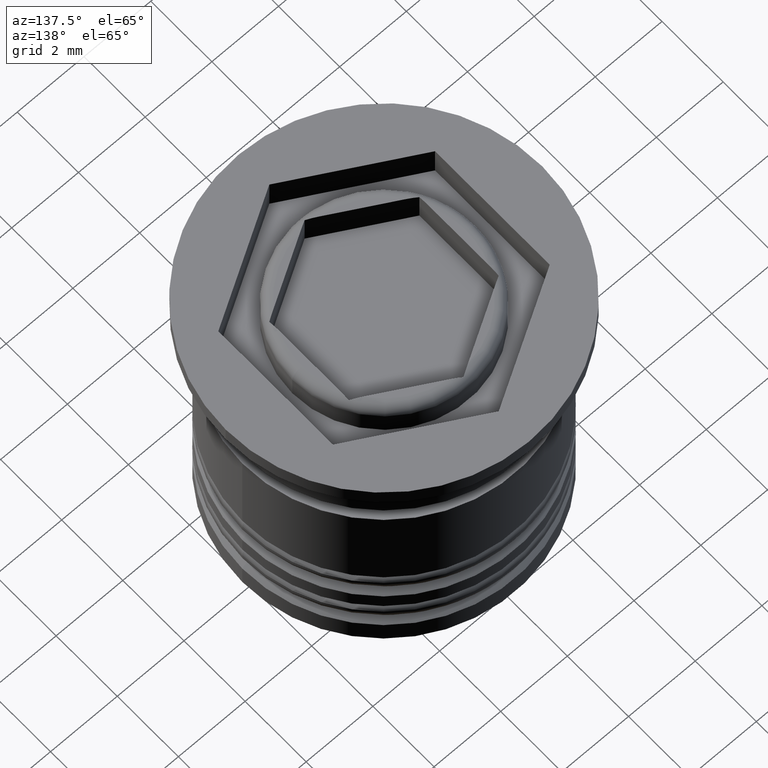
[diagram: clean part render]
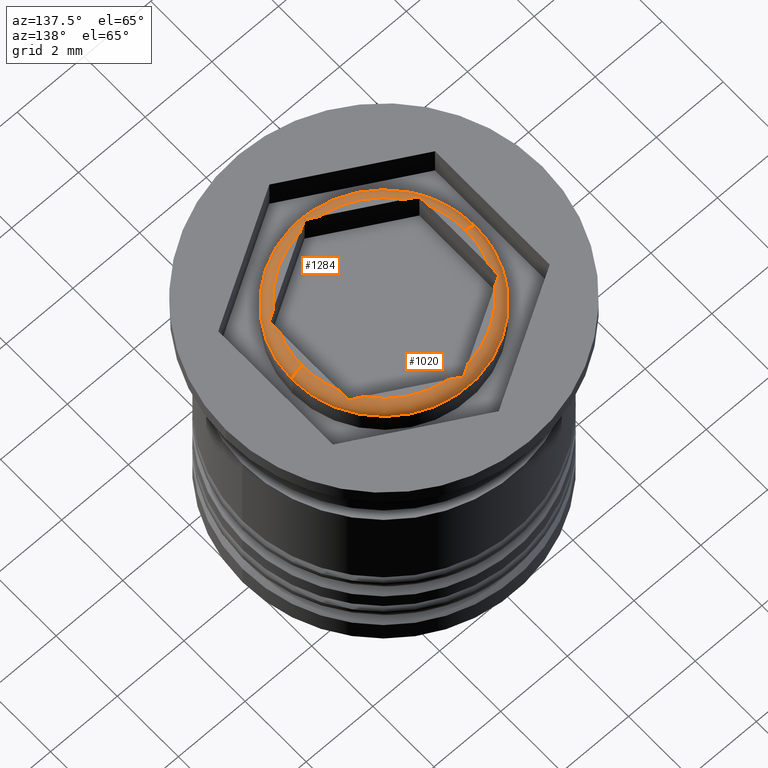
[diagram: same view with one multi-face feature highlighted, each face labeled with its STEP entity id]
A machine part, auxiliary view. The highlighted faces form ONE feature: a constant-radius fillet chain: 2 tangent blend faces with common blend radius 0.3 mm. The faces share edges in the B-rep.
Their STEP definitions:
[1] entity #1020 (Torus):
#14 = ORIENTED_EDGE ( 'NONE', *, *, #1392, .F. ) ;
#33 = CARTESIAN_POINT ( 'NONE',  ( -2.249999999999999556, 1.299038105676657340, -0.03909113539159181361 ) ) ;
#83 = EDGE_CURVE ( 'NONE', #1357, #1843, #1009, .T. ) ;
#94 = AXIS2_PLACEMENT_3D ( 'NONE', #482, #1120, #1261 ) ;
#108 = EDGE_CURVE ( 'NONE', #1653, #1841, #541, .T. ) ;
#109 = VERTEX_POINT ( 'NONE', #723 ) ;
#164 = CARTESIAN_POINT ( 'NONE',  ( 2.249999999999999556, 0.9695359714832667564, 0.000000000000000000 ) ) ;
#182 = DIRECTION ( 'NONE',  ( 0.000000000000000000, 0.000000000000000000, -1.000000000000000000 ) ) ;
#198 = ORIENTED_EDGE ( 'NONE', *, *, #558, .F. ) ;
#201 = EDGE_CURVE ( 'NONE', #1841, #109, #295, .T. ) ;
#206 = VERTEX_POINT ( 'NONE', #1345 ) ;
#218 = CIRCLE ( 'NONE', #1050, 2.449999999999999734 ) ;
#221 = CIRCLE ( 'NONE', #390, 0.2999999999999999334 ) ;
#231 = VERTEX_POINT ( 'NONE', #1546 ) ;
#237 = DIRECTION ( 'NONE',  ( -0.000000000000000000, -0.000000000000000000, 1.000000000000000000 ) ) ;
#253 = CARTESIAN_POINT ( 'NONE',  ( 1.964642781187333487, 1.463789172773352965, 0.000000000000000000 ) ) ;
#295 = B_SPLINE_CURVE_WITH_KNOTS ( 'NONE', 3,
 ( #1333, #928, #1042, #403 ),
 .UNSPECIFIED., .F., .F.,
 ( 4, 4 ),
 ( 0.000000000000000000, 0.0003318128588590306210 ),
 .UNSPECIFIED. ) ;
#312 = CARTESIAN_POINT ( 'NONE',  ( 2.449999999999999734, 0.000000000000000000, 0.000000000000000000 ) ) ;
#350 = B_SPLINE_CURVE_WITH_KNOTS ( 'NONE', 3,
 ( #33, #1800, #1426, #1751 ),
 .UNSPECIFIED., .F., .F.,
 ( 4, 4 ),
 ( 1.355252715606880392E-20, 0.0003318128588590305125 ),
 .UNSPECIFIED. ) ;
#367 = DIRECTION ( 'NONE',  ( 0.000000000000000000, -1.000000000000000000, 0.000000000000000000 ) ) ;
#377 = CARTESIAN_POINT ( 'NONE',  ( -2.449999999999999734, 3.000384657911015370E-16, -0.2999999999999999334 ) ) ;
#382 = CARTESIAN_POINT ( 'NONE',  ( 0.000000000000000000, 0.000000000000000000, 0.000000000000000000 ) ) ;
#390 = AXIS2_PLACEMENT_3D ( 'NONE', #656, #367, #1163 ) ;
#403 = CARTESIAN_POINT ( 'NONE',  ( -2.249999999999999556, 1.299038105676657340, -0.03909113539159181361 ) ) ;
#437 = EDGE_CURVE ( 'NONE', #206, #1775, #218, .T. ) ;
#482 = CARTESIAN_POINT ( 'NONE',  ( 0.000000000000000000, 0.000000000000000000, -0.2999999999999999334 ) ) ;
#499 = CARTESIAN_POINT ( 'NONE',  ( 0.2853572188126658471, 2.433325144256619943, 0.000000000000000000 ) ) ;
#502 = DIRECTION ( 'NONE',  ( -0.000000000000000000, -0.000000000000000000, 1.000000000000000000 ) ) ;
#505 = CARTESIAN_POINT ( 'NONE',  ( 0.000000000000000000, 0.000000000000000000, 0.000000000000000000 ) ) ;
#521 = DIRECTION ( 'NONE',  ( 1.000000000000000000, 0.000000000000000000, 0.000000000000000000 ) ) ;
#528 = ORIENTED_EDGE ( 'NONE', *, *, #1116, .F. ) ;
#541 = CIRCLE ( 'NONE', #1630, 2.449999999999999734 ) ;
#558 = EDGE_CURVE ( 'NONE', #1843, #1407, #924, .T. ) ;
#581 = CIRCLE ( 'NONE', #1053, 0.2999999999999999334 ) ;
#642 = CARTESIAN_POINT ( 'NONE',  ( 0.09331629800900277660, 2.544200021578038484, -0.008514243816631314118 ) ) ;
#653 = EDGE_CURVE ( 'NONE', #231, #1775, #581, .T. ) ;
#656 = CARTESIAN_POINT ( 'NONE',  ( 2.449999999999999734, 0.000000000000000000, -0.2999999999999999334 ) ) ;
#661 = ORIENTED_EDGE ( 'NONE', *, *, #793, .F. ) ;
#664 = EDGE_CURVE ( 'NONE', #1025, #1357, #221, .T. ) ;
#721 = B_SPLINE_CURVE_WITH_KNOTS ( 'NONE', 3,
 ( #943, #786, #1111, #1736 ),
 .UNSPECIFIED., .F., .F.,
 ( 4, 4 ),
 ( 7.807858345385552951E-20, 0.0003318128588590312173 ),
 .UNSPECIFIED. ) ;
#723 = CARTESIAN_POINT ( 'NONE',  ( -2.249999999999999556, 1.299038105676657340, -0.03909113539159181361 ) ) ;
#741 = CARTESIAN_POINT ( 'NONE',  ( 2.156683701990996571, 1.352914295451935311, -0.008514243816639953041 ) ) ;
#752 = CARTESIAN_POINT ( 'NONE',  ( 2.061100629496125602, 1.408099208086820653, 4.580113279480079541E-18 ) ) ;
#786 = CARTESIAN_POINT ( 'NONE',  ( -0.09331629800900279048, 2.544200021578038484, -0.008514243816639925286 ) ) ;
#793 = EDGE_CURVE ( 'NONE', #1407, #880, #1317, .T. ) ;
#795 = CARTESIAN_POINT ( 'NONE',  ( 2.249999999999999556, 1.299038105676658228, -0.03909113539159181361 ) ) ;
#831 = CARTESIAN_POINT ( 'NONE',  ( -1.964642781187333931, 1.463789172773352742, 0.000000000000000000 ) ) ;
#836 = DIRECTION ( 'NONE',  ( 1.000000000000000000, 0.000000000000000000, 0.000000000000000000 ) ) ;
#838 = CARTESIAN_POINT ( 'NONE',  ( 0.000000000000000000, 0.000000000000000000, 0.000000000000000000 ) ) ;
#868 = ORIENTED_EDGE ( 'NONE', *, *, #664, .F. ) ;
#880 = VERTEX_POINT ( 'NONE', #885 ) ;
#885 = CARTESIAN_POINT ( 'NONE',  ( 1.964642781187333487, 1.463789172773352965, 0.000000000000000000 ) ) ;
#924 = B_SPLINE_CURVE_WITH_KNOTS ( 'NONE', 3,
 ( #164, #1886, #1278, #1580 ),
 .UNSPECIFIED., .F., .F.,
 ( 4, 4 ),
 ( 1.091596556667333610E-19, 0.0003318128588590312715 ),
 .UNSPECIFIED. ) ;
#928 = CARTESIAN_POINT ( 'NONE',  ( -2.061100629496125158, 1.408099208086819987, 0.000000000000000000 ) ) ;
#943 = CARTESIAN_POINT ( 'NONE',  ( 0.000000000000000000, 2.598076211353315568, -0.03909113539159181361 ) ) ;
#953 = DIRECTION ( 'NONE',  ( -0.000000000000000000, -0.000000000000000000, 1.000000000000000000 ) ) ;
#967 = DIRECTION ( 'NONE',  ( 1.000000000000000000, 0.000000000000000000, 0.000000000000000000 ) ) ;
#972 = CARTESIAN_POINT ( 'NONE',  ( 0.000000000000000000, 2.598076211353315568, -0.03909113539159181361 ) ) ;
#1009 = CIRCLE ( 'NONE', #1589, 2.449999999999999734 ) ;
#1017 = ORIENTED_EDGE ( 'NONE', *, *, #1069, .F. ) ;
#1020 = ADVANCED_FACE ( 'NONE', ( #2017 ), #1840, .T. ) ;
#1025 = VERTEX_POINT ( 'NONE', #1579 ) ;
#1042 = CARTESIAN_POINT ( 'NONE',  ( -2.156683701990996127, 1.352914295451934867, -0.008514243816631204831 ) ) ;
#1050 = AXIS2_PLACEMENT_3D ( 'NONE', #382, #1159, #521 ) ;
#1053 = AXIS2_PLACEMENT_3D ( 'NONE', #377, #1154, #1939 ) ;
#1059 = EDGE_CURVE ( 'NONE', #1613, #1322, #1952, .T. ) ;
#1069 = EDGE_CURVE ( 'NONE', #231, #1025, #1641, .T. ) ;
#1111 = CARTESIAN_POINT ( 'NONE',  ( -0.1888993705038740090, 2.489015108943152921, 5.673802033703191998E-17 ) ) ;
#1116 = EDGE_CURVE ( 'NONE', #109, #206, #350, .T. ) ;
#1120 = DIRECTION ( 'NONE',  ( -0.000000000000000000, -0.000000000000000000, 1.000000000000000000 ) ) ;
#1127 = CARTESIAN_POINT ( 'NONE',  ( 0.000000000000000000, 0.000000000000000000, -0.2999999999999999334 ) ) ;
#1137 = DIRECTION ( 'NONE',  ( 1.000000000000000000, 0.000000000000000000, 0.000000000000000000 ) ) ;
#1141 = DIRECTION ( 'NONE',  ( 1.000000000000000000, 0.000000000000000000, 0.000000000000000000 ) ) ;
#1154 = DIRECTION ( 'NONE',  ( 1.224646799147353207E-16, 1.000000000000000000, 0.000000000000000000 ) ) ;
#1159 = DIRECTION ( 'NONE',  ( -0.000000000000000000, -0.000000000000000000, 1.000000000000000000 ) ) ;
#1160 = ORIENTED_EDGE ( 'NONE', *, *, #437, .F. ) ;
#1163 = DIRECTION ( 'NONE',  ( 0.000000000000000000, 0.000000000000000000, -1.000000000000000000 ) ) ;
#1168 = ORIENTED_EDGE ( 'NONE', *, *, #1059, .F. ) ;
#1200 = CARTESIAN_POINT ( 'NONE',  ( 0.2853572188126658471, 2.433325144256619943, 0.000000000000000000 ) ) ;
#1261 = DIRECTION ( 'NONE',  ( 1.000000000000000000, 0.000000000000000000, 0.000000000000000000 ) ) ;
#1278 = CARTESIAN_POINT ( 'NONE',  ( 2.249999999999999556, 1.191285726126103395, -0.008514243816631157993 ) ) ;
#1296 = CARTESIAN_POINT ( 'NONE',  ( 0.1888993705038739812, 2.489015108943152477, 6.307560615009485483E-17 ) ) ;
#1307 = AXIS2_PLACEMENT_3D ( 'NONE', #1127, #182, #836 ) ;
#1317 = B_SPLINE_CURVE_WITH_KNOTS ( 'NONE', 3,
 ( #1353, #741, #752, #253 ),
 .UNSPECIFIED., .F., .F.,
 ( 4, 4 ),
 ( 1.355252715606880543E-20, 0.0003318128588590308378 ),
 .UNSPECIFIED. ) ;
#1322 = VERTEX_POINT ( 'NONE', #972 ) ;
#1333 = CARTESIAN_POINT ( 'NONE',  ( -1.964642781187333931, 1.463789172773352742, 0.000000000000000000 ) ) ;
#1345 = CARTESIAN_POINT ( 'NONE',  ( -2.249999999999999556, 0.9695359714832668674, 0.000000000000000000 ) ) ;
#1353 = CARTESIAN_POINT ( 'NONE',  ( 2.249999999999999556, 1.299038105676658228, -0.03909113539159181361 ) ) ;
#1357 = VERTEX_POINT ( 'NONE', #312 ) ;
#1360 = EDGE_CURVE ( 'NONE', #880, #1613, #2029, .T. ) ;
#1392 = EDGE_CURVE ( 'NONE', #1322, #1653, #721, .T. ) ;
#1401 = AXIS2_PLACEMENT_3D ( 'NONE', #505, #953, #1141 ) ;
#1407 = VERTEX_POINT ( 'NONE', #795 ) ;
#1423 = CARTESIAN_POINT ( 'NONE',  ( -0.2853572188126657916, 2.433325144256619943, 0.000000000000000000 ) ) ;
#1426 = CARTESIAN_POINT ( 'NONE',  ( -2.249999999999999556, 1.080915900856332712, 2.962634858630477215E-17 ) ) ;
#1488 = ORIENTED_EDGE ( 'NONE', *, *, #1360, .F. ) ;
#1546 = CARTESIAN_POINT ( 'NONE',  ( -2.750000000000000000, 3.367778697655221012E-16, -0.2999999999999999334 ) ) ;
#1569 = ORIENTED_EDGE ( 'NONE', *, *, #83, .F. ) ;
#1579 = CARTESIAN_POINT ( 'NONE',  ( 2.750000000000000000, 0.000000000000000000, -0.2999999999999999334 ) ) ;
#1580 = CARTESIAN_POINT ( 'NONE',  ( 2.249999999999999556, 1.299038105676658228, -0.03909113539159181361 ) ) ;
#1589 = AXIS2_PLACEMENT_3D ( 'NONE', #838, #502, #1137 ) ;
#1602 = ORIENTED_EDGE ( 'NONE', *, *, #201, .F. ) ;
#1613 = VERTEX_POINT ( 'NONE', #1200 ) ;
#1630 = AXIS2_PLACEMENT_3D ( 'NONE', #1648, #237, #967 ) ;
#1641 = CIRCLE ( 'NONE', #1307, 2.750000000000000000 ) ;
#1648 = CARTESIAN_POINT ( 'NONE',  ( 0.000000000000000000, 0.000000000000000000, 0.000000000000000000 ) ) ;
#1652 = CARTESIAN_POINT ( 'NONE',  ( 2.249999999999999556, 0.9695359714832667564, 0.000000000000000000 ) ) ;
#1653 = VERTEX_POINT ( 'NONE', #1423 ) ;
#1662 = ORIENTED_EDGE ( 'NONE', *, *, #653, .T. ) ;
#1736 = CARTESIAN_POINT ( 'NONE',  ( -0.2853572188126657916, 2.433325144256619943, 0.000000000000000000 ) ) ;
#1751 = CARTESIAN_POINT ( 'NONE',  ( -2.249999999999999556, 0.9695359714832668674, 0.000000000000000000 ) ) ;
#1757 = CARTESIAN_POINT ( 'NONE',  ( -2.449999999999999734, 3.184081677783117698E-16, 0.000000000000000000 ) ) ;
#1775 = VERTEX_POINT ( 'NONE', #1757 ) ;
#1777 = EDGE_LOOP ( 'NONE', ( #1017, #1662, #1160, #528, #1602, #1973, #14, #1168, #1488, #661, #198, #1569, #868 ) ) ;
#1800 = CARTESIAN_POINT ( 'NONE',  ( -2.249999999999999556, 1.191285726126103395, -0.008514243816639992940 ) ) ;
#1840 = TOROIDAL_SURFACE ( 'NONE', #94, 2.449999999999999734, 0.2999999999999999889 ) ;
#1841 = VERTEX_POINT ( 'NONE', #831 ) ;
#1843 = VERTEX_POINT ( 'NONE', #1652 ) ;
#1886 = CARTESIAN_POINT ( 'NONE',  ( 2.249999999999999556, 1.080915900856332712, 0.000000000000000000 ) ) ;
#1908 = CARTESIAN_POINT ( 'NONE',  ( 0.000000000000000000, 2.598076211353315568, -0.03909113539159181361 ) ) ;
#1939 = DIRECTION ( 'NONE',  ( -1.000000000000000000, 1.224646799147353207E-16, 0.000000000000000000 ) ) ;
#1952 = B_SPLINE_CURVE_WITH_KNOTS ( 'NONE', 3,
 ( #499, #1296, #642, #1908 ),
 .UNSPECIFIED., .F., .F.,
 ( 4, 4 ),
 ( 6.984735342437677234E-19, 0.0003318128588590306210 ),
 .UNSPECIFIED. ) ;
#1973 = ORIENTED_EDGE ( 'NONE', *, *, #108, .F. ) ;
#2017 = FACE_OUTER_BOUND ( 'NONE', #1777, .T. ) ;
#2029 = CIRCLE ( 'NONE', #1401, 2.449999999999999734 ) ;
[2] entity #1284 (Torus):
#9 = B_SPLINE_CURVE_WITH_KNOTS ( 'NONE', 3,
 ( #1386, #1408, #309, #2037 ),
 .UNSPECIFIED., .F., .F.,
 ( 4, 4 ),
 ( 6.984735342437677234E-19, 0.0003318128588590306210 ),
 .UNSPECIFIED. ) ;
#24 = CIRCLE ( 'NONE', #1673, 2.449999999999999734 ) ;
#27 = DIRECTION ( 'NONE',  ( -0.000000000000000000, -0.000000000000000000, 1.000000000000000000 ) ) ;
#32 = EDGE_CURVE ( 'NONE', #1922, #413, #1587, .T. ) ;
#104 = EDGE_LOOP ( 'NONE', ( #1821, #149, #1040, #1633, #1439, #336, #532, #1067, #1512, #1923, #1486, #538, #1088 ) ) ;
#149 = ORIENTED_EDGE ( 'NONE', *, *, #1544, .F. ) ;
#188 = FACE_OUTER_BOUND ( 'NONE', #104, .T. ) ;
#221 = CIRCLE ( 'NONE', #390, 0.2999999999999999334 ) ;
#231 = VERTEX_POINT ( 'NONE', #1546 ) ;
#262 = DIRECTION ( 'NONE',  ( 1.000000000000000000, 0.000000000000000000, 0.000000000000000000 ) ) ;
#282 = CARTESIAN_POINT ( 'NONE',  ( -0.2853572188126658471, -2.433325144256619943, 0.000000000000000000 ) ) ;
#290 = CIRCLE ( 'NONE', #780, 2.449999999999999734 ) ;
#293 = EDGE_CURVE ( 'NONE', #1104, #1342, #463, .T. ) ;
#309 = CARTESIAN_POINT ( 'NONE',  ( -0.09331629800900277660, -2.544200021578038484, -0.008514243816631314118 ) ) ;
#312 = CARTESIAN_POINT ( 'NONE',  ( 2.449999999999999734, 0.000000000000000000, 0.000000000000000000 ) ) ;
#336 = ORIENTED_EDGE ( 'NONE', *, *, #32, .F. ) ;
#358 = CARTESIAN_POINT ( 'NONE',  ( -1.964642781187333931, -1.463789172773353409, 0.000000000000000000 ) ) ;
#367 = DIRECTION ( 'NONE',  ( 0.000000000000000000, -1.000000000000000000, 0.000000000000000000 ) ) ;
#377 = CARTESIAN_POINT ( 'NONE',  ( -2.449999999999999734, 3.000384657911015370E-16, -0.2999999999999999334 ) ) ;
#390 = AXIS2_PLACEMENT_3D ( 'NONE', #656, #367, #1163 ) ;
#391 = CARTESIAN_POINT ( 'NONE',  ( -1.964642781187333931, -1.463789172773353409, 0.000000000000000000 ) ) ;
#413 = VERTEX_POINT ( 'NONE', #669 ) ;
#442 = CARTESIAN_POINT ( 'NONE',  ( -2.249999999999999556, -1.080915900856332712, 0.000000000000000000 ) ) ;
#450 = CARTESIAN_POINT ( 'NONE',  ( 0.000000000000000000, 0.000000000000000000, -0.2999999999999999334 ) ) ;
#458 = CARTESIAN_POINT ( 'NONE',  ( -2.249999999999999556, -1.299038105676658228, -0.03909113539159181361 ) ) ;
#463 = B_SPLINE_CURVE_WITH_KNOTS ( 'NONE', 3,
 ( #497, #1883, #1553, #1921 ),
 .UNSPECIFIED., .F., .F.,
 ( 4, 4 ),
 ( 7.807858345385552951E-20, 0.0003318128588590312173 ),
 .UNSPECIFIED. ) ;
#465 = EDGE_CURVE ( 'NONE', #413, #1068, #1729, .T. ) ;
#497 = CARTESIAN_POINT ( 'NONE',  ( -1.671110122936318010E-17, -2.598076211353315568, -0.03909113539159181361 ) ) ;
#514 = CARTESIAN_POINT ( 'NONE',  ( 1.964642781187333931, -1.463789172773352742, 0.000000000000000000 ) ) ;
#532 = ORIENTED_EDGE ( 'NONE', *, *, #1722, .F. ) ;
#538 = ORIENTED_EDGE ( 'NONE', *, *, #1929, .F. ) ;
#551 = B_SPLINE_CURVE_WITH_KNOTS ( 'NONE', 3,
 ( #1027, #442, #1992, #1046 ),
 .UNSPECIFIED., .F., .F.,
 ( 4, 4 ),
 ( 1.091596556667333610E-19, 0.0003318128588590312715 ),
 .UNSPECIFIED. ) ;
#581 = CIRCLE ( 'NONE', #1053, 0.2999999999999999334 ) ;
#609 = DIRECTION ( 'NONE',  ( 1.000000000000000000, 0.000000000000000000, 0.000000000000000000 ) ) ;
#626 = DIRECTION ( 'NONE',  ( 1.000000000000000000, 0.000000000000000000, 0.000000000000000000 ) ) ;
#634 = CARTESIAN_POINT ( 'NONE',  ( 0.2853572188126657916, -2.433325144256619943, 0.000000000000000000 ) ) ;
#653 = EDGE_CURVE ( 'NONE', #231, #1775, #581, .T. ) ;
#656 = CARTESIAN_POINT ( 'NONE',  ( 2.449999999999999734, 0.000000000000000000, -0.2999999999999999334 ) ) ;
#663 = CARTESIAN_POINT ( 'NONE',  ( 2.249999999999999556, -0.9695359714832668674, 0.000000000000000000 ) ) ;
#664 = EDGE_CURVE ( 'NONE', #1025, #1357, #221, .T. ) ;
#669 = CARTESIAN_POINT ( 'NONE',  ( 2.249999999999999556, -1.299038105676657340, -0.03909113539159181361 ) ) ;
#716 = CIRCLE ( 'NONE', #1597, 2.449999999999999734 ) ;
#748 = CIRCLE ( 'NONE', #1119, 2.449999999999999734 ) ;
#778 = AXIS2_PLACEMENT_3D ( 'NONE', #450, #905, #1861 ) ;
#779 = VERTEX_POINT ( 'NONE', #391 ) ;
#780 = AXIS2_PLACEMENT_3D ( 'NONE', #1039, #1304, #1337 ) ;
#785 = CARTESIAN_POINT ( 'NONE',  ( 2.249999999999999556, -1.299038105676657340, -0.03909113539159181361 ) ) ;
#905 = DIRECTION ( 'NONE',  ( 0.000000000000000000, 0.000000000000000000, -1.000000000000000000 ) ) ;
#927 = CARTESIAN_POINT ( 'NONE',  ( 0.000000000000000000, 0.000000000000000000, 0.000000000000000000 ) ) ;
#932 = CARTESIAN_POINT ( 'NONE',  ( 2.249999999999999556, -1.191285726126103395, -0.008514243816639992940 ) ) ;
#933 = CARTESIAN_POINT ( 'NONE',  ( 0.000000000000000000, 0.000000000000000000, 0.000000000000000000 ) ) ;
#949 = VERTEX_POINT ( 'NONE', #2028 ) ;
#987 = EDGE_CURVE ( 'NONE', #1198, #1104, #9, .T. ) ;
#992 = CARTESIAN_POINT ( 'NONE',  ( -1.671110122936318010E-17, -2.598076211353315568, -0.03909113539159181361 ) ) ;
#1007 = CARTESIAN_POINT ( 'NONE',  ( -2.156683701990996571, -1.352914295451935311, -0.008514243816639953041 ) ) ;
#1025 = VERTEX_POINT ( 'NONE', #1579 ) ;
#1027 = CARTESIAN_POINT ( 'NONE',  ( -2.249999999999999556, -0.9695359714832667564, 0.000000000000000000 ) ) ;
#1039 = CARTESIAN_POINT ( 'NONE',  ( 0.000000000000000000, 0.000000000000000000, 0.000000000000000000 ) ) ;
#1040 = ORIENTED_EDGE ( 'NONE', *, *, #664, .T. ) ;
#1046 = CARTESIAN_POINT ( 'NONE',  ( -2.249999999999999556, -1.299038105676658228, -0.03909113539159181361 ) ) ;
#1053 = AXIS2_PLACEMENT_3D ( 'NONE', #377, #1154, #1939 ) ;
#1067 = ORIENTED_EDGE ( 'NONE', *, *, #293, .F. ) ;
#1068 = VERTEX_POINT ( 'NONE', #663 ) ;
#1073 = DIRECTION ( 'NONE',  ( -0.000000000000000000, -0.000000000000000000, 1.000000000000000000 ) ) ;
#1088 = ORIENTED_EDGE ( 'NONE', *, *, #1598, .F. ) ;
#1095 = DIRECTION ( 'NONE',  ( -0.000000000000000000, -0.000000000000000000, 1.000000000000000000 ) ) ;
#1104 = VERTEX_POINT ( 'NONE', #992 ) ;
#1119 = AXIS2_PLACEMENT_3D ( 'NONE', #2022, #1095, #609 ) ;
#1121 = CARTESIAN_POINT ( 'NONE',  ( 2.249999999999999556, -1.080915900856332712, 2.962634858630477215E-17 ) ) ;
#1129 = CARTESIAN_POINT ( 'NONE',  ( 2.249999999999999556, -1.299038105676657340, -0.03909113539159181361 ) ) ;
#1153 = CARTESIAN_POINT ( 'NONE',  ( 2.156683701990996127, -1.352914295451934867, -0.008514243816631204831 ) ) ;
#1154 = DIRECTION ( 'NONE',  ( 1.224646799147353207E-16, 1.000000000000000000, 0.000000000000000000 ) ) ;
#1163 = DIRECTION ( 'NONE',  ( 0.000000000000000000, 0.000000000000000000, -1.000000000000000000 ) ) ;
#1198 = VERTEX_POINT ( 'NONE', #282 ) ;
#1274 = VERTEX_POINT ( 'NONE', #458 ) ;
#1280 = CARTESIAN_POINT ( 'NONE',  ( 0.000000000000000000, 0.000000000000000000, -0.2999999999999999334 ) ) ;
#1284 = ADVANCED_FACE ( 'NONE', ( #188 ), #1400, .T. ) ;
#1304 = DIRECTION ( 'NONE',  ( -0.000000000000000000, -0.000000000000000000, 1.000000000000000000 ) ) ;
#1337 = DIRECTION ( 'NONE',  ( 1.000000000000000000, 0.000000000000000000, 0.000000000000000000 ) ) ;
#1342 = VERTEX_POINT ( 'NONE', #634 ) ;
#1357 = VERTEX_POINT ( 'NONE', #312 ) ;
#1371 = CIRCLE ( 'NONE', #778, 2.750000000000000000 ) ;
#1372 = EDGE_CURVE ( 'NONE', #779, #1198, #716, .T. ) ;
#1386 = CARTESIAN_POINT ( 'NONE',  ( -0.2853572188126658471, -2.433325144256619943, 0.000000000000000000 ) ) ;
#1400 = TOROIDAL_SURFACE ( 'NONE', #1595, 2.449999999999999734, 0.2999999999999999889 ) ;
#1408 = CARTESIAN_POINT ( 'NONE',  ( -0.1888993705038739812, -2.489015108943152477, 6.307560615009485483E-17 ) ) ;
#1439 = ORIENTED_EDGE ( 'NONE', *, *, #465, .F. ) ;
#1460 = EDGE_CURVE ( 'NONE', #1274, #779, #1877, .T. ) ;
#1486 = ORIENTED_EDGE ( 'NONE', *, *, #1460, .F. ) ;
#1512 = ORIENTED_EDGE ( 'NONE', *, *, #987, .F. ) ;
#1544 = EDGE_CURVE ( 'NONE', #1025, #231, #1371, .T. ) ;
#1546 = CARTESIAN_POINT ( 'NONE',  ( -2.750000000000000000, 3.367778697655221012E-16, -0.2999999999999999334 ) ) ;
#1551 = DIRECTION ( 'NONE',  ( -0.000000000000000000, -0.000000000000000000, 1.000000000000000000 ) ) ;
#1553 = CARTESIAN_POINT ( 'NONE',  ( 0.1888993705038740090, -2.489015108943152921, 5.673802033703191998E-17 ) ) ;
#1579 = CARTESIAN_POINT ( 'NONE',  ( 2.750000000000000000, 0.000000000000000000, -0.2999999999999999334 ) ) ;
#1587 = B_SPLINE_CURVE_WITH_KNOTS ( 'NONE', 3,
 ( #514, #1917, #1153, #1129 ),
 .UNSPECIFIED., .F., .F.,
 ( 4, 4 ),
 ( 0.000000000000000000, 0.0003318128588590306210 ),
 .UNSPECIFIED. ) ;
#1595 = AXIS2_PLACEMENT_3D ( 'NONE', #1280, #27, #1911 ) ;
#1597 = AXIS2_PLACEMENT_3D ( 'NONE', #933, #1551, #626 ) ;
#1598 = EDGE_CURVE ( 'NONE', #1775, #949, #24, .T. ) ;
#1608 = CARTESIAN_POINT ( 'NONE',  ( -2.249999999999999556, -1.299038105676658228, -0.03909113539159181361 ) ) ;
#1633 = ORIENTED_EDGE ( 'NONE', *, *, #1825, .F. ) ;
#1635 = CARTESIAN_POINT ( 'NONE',  ( -2.061100629496125602, -1.408099208086820653, 4.580113279480079541E-18 ) ) ;
#1673 = AXIS2_PLACEMENT_3D ( 'NONE', #927, #1073, #262 ) ;
#1702 = CARTESIAN_POINT ( 'NONE',  ( 2.249999999999999556, -0.9695359714832668674, 0.000000000000000000 ) ) ;
#1722 = EDGE_CURVE ( 'NONE', #1342, #1922, #748, .T. ) ;
#1729 = B_SPLINE_CURVE_WITH_KNOTS ( 'NONE', 3,
 ( #785, #932, #1121, #1702 ),
 .UNSPECIFIED., .F., .F.,
 ( 4, 4 ),
 ( 1.355252715606880392E-20, 0.0003318128588590305125 ),
 .UNSPECIFIED. ) ;
#1757 = CARTESIAN_POINT ( 'NONE',  ( -2.449999999999999734, 3.184081677783117698E-16, 0.000000000000000000 ) ) ;
#1775 = VERTEX_POINT ( 'NONE', #1757 ) ;
#1821 = ORIENTED_EDGE ( 'NONE', *, *, #653, .F. ) ;
#1825 = EDGE_CURVE ( 'NONE', #1068, #1357, #290, .T. ) ;
#1861 = DIRECTION ( 'NONE',  ( 1.000000000000000000, 0.000000000000000000, 0.000000000000000000 ) ) ;
#1877 = B_SPLINE_CURVE_WITH_KNOTS ( 'NONE', 3,
 ( #1608, #1007, #1635, #358 ),
 .UNSPECIFIED., .F., .F.,
 ( 4, 4 ),
 ( 1.355252715606880543E-20, 0.0003318128588590308378 ),
 .UNSPECIFIED. ) ;
#1883 = CARTESIAN_POINT ( 'NONE',  ( 0.09331629800900277660, -2.544200021578038484, -0.008514243816639925286 ) ) ;
#1911 = DIRECTION ( 'NONE',  ( 1.000000000000000000, 0.000000000000000000, 0.000000000000000000 ) ) ;
#1917 = CARTESIAN_POINT ( 'NONE',  ( 2.061100629496125158, -1.408099208086819987, 0.000000000000000000 ) ) ;
#1921 = CARTESIAN_POINT ( 'NONE',  ( 0.2853572188126657916, -2.433325144256619943, 0.000000000000000000 ) ) ;
#1922 = VERTEX_POINT ( 'NONE', #1943 ) ;
#1923 = ORIENTED_EDGE ( 'NONE', *, *, #1372, .F. ) ;
#1929 = EDGE_CURVE ( 'NONE', #949, #1274, #551, .T. ) ;
#1939 = DIRECTION ( 'NONE',  ( -1.000000000000000000, 1.224646799147353207E-16, 0.000000000000000000 ) ) ;
#1943 = CARTESIAN_POINT ( 'NONE',  ( 1.964642781187333931, -1.463789172773352742, 0.000000000000000000 ) ) ;
#1992 = CARTESIAN_POINT ( 'NONE',  ( -2.249999999999999556, -1.191285726126103395, -0.008514243816631157993 ) ) ;
#2022 = CARTESIAN_POINT ( 'NONE',  ( 0.000000000000000000, 0.000000000000000000, 0.000000000000000000 ) ) ;
#2028 = CARTESIAN_POINT ( 'NONE',  ( -2.249999999999999556, -0.9695359714832667564, 0.000000000000000000 ) ) ;
#2037 = CARTESIAN_POINT ( 'NONE',  ( -1.671110122936318010E-17, -2.598076211353315568, -0.03909113539159181361 ) ) ;